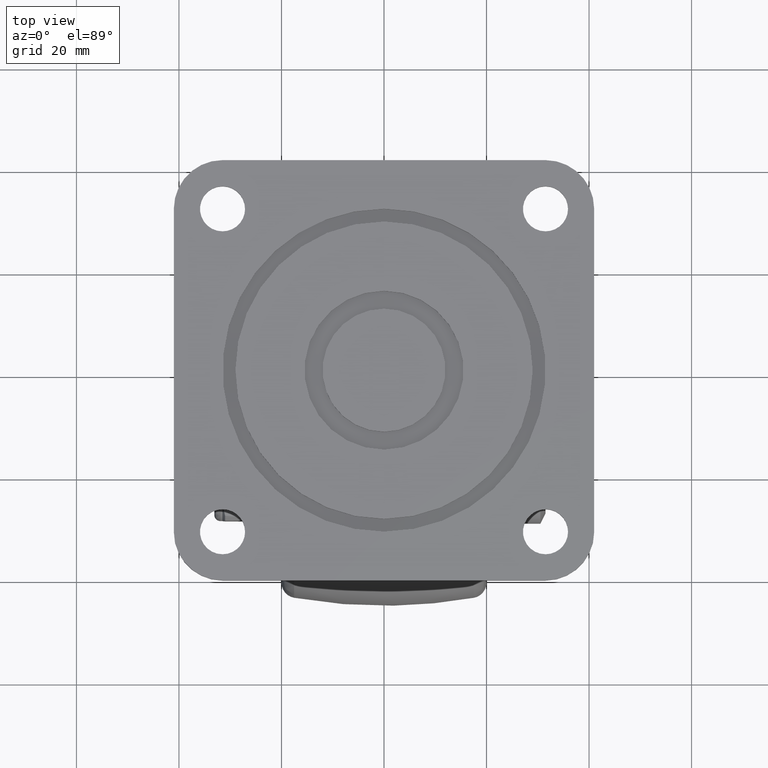
[diagram: clean part render]
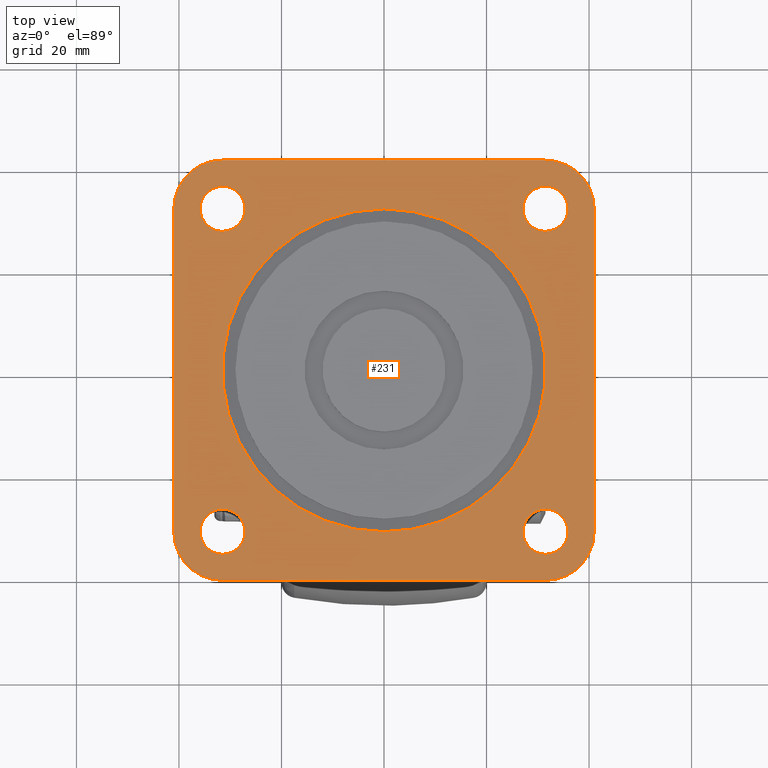
[diagram: same view with one face highlighted and labeled with its STEP entity id]
A machine part, top view. The second image highlights one B-rep face of the part: STEP entity #231.
In plain terms, the highlighted planar face has unit normal (0, 0, 1).
Its self-contained STEP definition (entity closure, byte-faithful):
#231=ADVANCED_FACE('',(#1157,#1158,#1159,#1160,#1161,#1162),#1156,.T.);
#1156=PLANE('',#2820);
#1157=FACE_OUTER_BOUND('',#2821,.T.);
#1158=FACE_BOUND('',#2822,.T.);
#1159=FACE_BOUND('',#2823,.T.);
#1160=FACE_BOUND('',#2824,.T.);
#1161=FACE_BOUND('',#2825,.T.);
#1162=FACE_BOUND('',#2826,.T.);
#2817=CARTESIAN_POINT('',(-4.92000000000E+01,0.00000000000E+00,-4.92000000000E+01));
#2818=DIRECTION('',(0.00000000000E+00,1.00000000000E+00,0.00000000000E+00));
#2819=DIRECTION('',(0.00000000000E+00,0.00000000000E+00,1.00000000000E+00));
#2820=AXIS2_PLACEMENT_3D('',#2817,#2818,#2819);
#2821=EDGE_LOOP('',(#4289,#4290,#4291,#4292,#4293,#4294,#4295,#4296));
#2822=EDGE_LOOP('',(#4297,#4298,#4299));
#2823=EDGE_LOOP('',(#4300,#4301,#4302));
#2824=EDGE_LOOP('',(#4303,#4304,#4305));
#2825=EDGE_LOOP('',(#4306,#4307,#4308));
#2826=EDGE_LOOP('',(#4309,#4310));
#4289=ORIENTED_EDGE('',*,*,#4922,.T.);
#4290=ORIENTED_EDGE('',*,*,#4923,.T.);
#4291=ORIENTED_EDGE('',*,*,#4924,.T.);
#4292=ORIENTED_EDGE('',*,*,#4925,.T.);
#4293=ORIENTED_EDGE('',*,*,#4926,.T.);
#4294=ORIENTED_EDGE('',*,*,#4927,.T.);
#4295=ORIENTED_EDGE('',*,*,#4928,.T.);
#4296=ORIENTED_EDGE('',*,*,#4929,.T.);
#4297=ORIENTED_EDGE('',*,*,#4930,.F.);
#4298=ORIENTED_EDGE('',*,*,#4931,.F.);
#4299=ORIENTED_EDGE('',*,*,#4932,.F.);
#4300=ORIENTED_EDGE('',*,*,#4933,.F.);
#4301=ORIENTED_EDGE('',*,*,#4934,.F.);
#4302=ORIENTED_EDGE('',*,*,#4935,.F.);
#4303=ORIENTED_EDGE('',*,*,#4936,.F.);
#4304=ORIENTED_EDGE('',*,*,#4937,.F.);
#4305=ORIENTED_EDGE('',*,*,#4938,.F.);
#4306=ORIENTED_EDGE('',*,*,#4939,.F.);
#4307=ORIENTED_EDGE('',*,*,#4940,.F.);
#4308=ORIENTED_EDGE('',*,*,#4941,.F.);
#4309=ORIENTED_EDGE('',*,*,#4942,.T.);
#4310=ORIENTED_EDGE('',*,*,#4943,.T.);
#4922=EDGE_CURVE('',#6444,#6445,#6446,.T.);
#4923=EDGE_CURVE('',#6445,#6452,#6453,.T.);
#4924=EDGE_CURVE('',#6452,#6459,#6460,.T.);
#4925=EDGE_CURVE('',#6459,#6466,#6467,.T.);
#4926=EDGE_CURVE('',#6466,#6473,#6474,.T.);
#4927=EDGE_CURVE('',#6473,#6480,#6481,.T.);
#4928=EDGE_CURVE('',#6480,#6487,#6488,.T.);
#4929=EDGE_CURVE('',#6487,#6444,#6494,.T.);
#4930=EDGE_CURVE('',#6500,#6501,#6502,.T.);
#4931=EDGE_CURVE('',#6508,#6500,#6509,.T.);
#4932=EDGE_CURVE('',#6501,#6508,#6515,.T.);
#4933=EDGE_CURVE('',#6521,#6522,#6523,.T.);
#4934=EDGE_CURVE('',#6529,#6521,#6530,.T.);
#4935=EDGE_CURVE('',#6522,#6529,#6536,.T.);
#4936=EDGE_CURVE('',#6542,#6543,#6544,.T.);
#4937=EDGE_CURVE('',#6550,#6542,#6551,.T.);
#4938=EDGE_CURVE('',#6543,#6550,#6557,.T.);
#4939=EDGE_CURVE('',#6563,#6564,#6565,.T.);
#4940=EDGE_CURVE('',#6571,#6563,#6572,.T.);
#4941=EDGE_CURVE('',#6564,#6571,#6578,.T.);
#4942=EDGE_CURVE('',#6584,#6585,#6586,.T.);
#4943=EDGE_CURVE('',#6585,#6584,#6592,.T.);
#6444=VERTEX_POINT('',#9018);
#6445=VERTEX_POINT('',#9019);
#6446=CIRCLE('',#9023,9.50000000000E+00);
#6452=VERTEX_POINT('',#9024);
#6453=LINE('',#9025,#9026);
#6459=VERTEX_POINT('',#9028);
#6460=CIRCLE('',#9032,9.50000000000E+00);
#6466=VERTEX_POINT('',#9033);
#6467=LINE('',#9034,#9035);
#6473=VERTEX_POINT('',#9037);
#6474=CIRCLE('',#9041,9.50000000000E+00);
#6480=VERTEX_POINT('',#9042);
#6481=LINE('',#9043,#9044);
#6487=VERTEX_POINT('',#9046);
#6488=CIRCLE('',#9050,9.50000000000E+00);
#6494=LINE('',#9051,#9052);
#6500=VERTEX_POINT('',#9054);
#6501=VERTEX_POINT('',#9055);
#6502=CIRCLE('',#9059,4.40000000000E+00);
#6508=VERTEX_POINT('',#9060);
#6509=CIRCLE('',#9064,4.40000000000E+00);
#6515=CIRCLE('',#9068,4.40000000000E+00);
#6521=VERTEX_POINT('',#9069);
#6522=VERTEX_POINT('',#9070);
#6523=CIRCLE('',#9074,4.40000000000E+00);
#6529=VERTEX_POINT('',#9075);
#6530=CIRCLE('',#9079,4.40000000000E+00);
#6536=CIRCLE('',#9083,4.40000000000E+00);
#6542=VERTEX_POINT('',#9084);
#6543=VERTEX_POINT('',#9085);
#6544=CIRCLE('',#9089,4.40000000000E+00);
#6550=VERTEX_POINT('',#9090);
#6551=CIRCLE('',#9094,4.40000000000E+00);
#6557=CIRCLE('',#9098,4.40000000000E+00);
#6563=VERTEX_POINT('',#9099);
#6564=VERTEX_POINT('',#9100);
#6565=CIRCLE('',#9104,4.40000000000E+00);
#6571=VERTEX_POINT('',#9105);
#6572=CIRCLE('',#9109,4.40000000000E+00);
#6578=CIRCLE('',#9113,4.40000000000E+00);
#6584=VERTEX_POINT('',#9114);
#6585=VERTEX_POINT('',#9115);
#6586=CIRCLE('',#9119,3.15000000000E+01);
#6592=CIRCLE('',#9123,3.15000000000E+01);
#9018=CARTESIAN_POINT('',(-3.15000000000E+01,0.00000000000E+00,-4.10000000000E+01));
#9019=CARTESIAN_POINT('',(-4.10000000000E+01,0.00000000000E+00,-3.15000000000E+01));
#9020=CARTESIAN_POINT('',(-3.15000000000E+01,0.00000000000E+00,-3.15000000000E+01));
#9021=DIRECTION('',(-0.00000000000E+00,1.00000000000E+00,0.00000000000E+00));
#9022=DIRECTION('',(-1.00000000000E+00,-0.00000000000E+00,-0.00000000000E+00));
#9023=AXIS2_PLACEMENT_3D('',#9020,#9021,#9022);
#9024=CARTESIAN_POINT('',(-4.10000000000E+01,0.00000000000E+00,3.15000000000E+01));
#9025=CARTESIAN_POINT('',(-4.10000000000E+01,0.00000000000E+00,-3.15000000000E+01));
#9026=VECTOR('',#9027,6.30000000000E+01);
#9027=DIRECTION('',(0.00000000000E+00,0.00000000000E+00,1.00000000000E+00));
#9028=CARTESIAN_POINT('',(-3.15000000000E+01,0.00000000000E+00,4.10000000000E+01));
#9029=CARTESIAN_POINT('',(-3.15000000000E+01,0.00000000000E+00,3.15000000000E+01));
#9030=DIRECTION('',(-0.00000000000E+00,1.00000000000E+00,0.00000000000E+00));
#9031=DIRECTION('',(-1.00000000000E+00,-0.00000000000E+00,-0.00000000000E+00));
#9032=AXIS2_PLACEMENT_3D('',#9029,#9030,#9031);
#9033=CARTESIAN_POINT('',(3.15000000000E+01,0.00000000000E+00,4.10000000000E+01));
#9034=CARTESIAN_POINT('',(-3.15000000000E+01,0.00000000000E+00,4.10000000000E+01));
#9035=VECTOR('',#9036,6.30000000000E+01);
#9036=DIRECTION('',(1.00000000000E+00,0.00000000000E+00,0.00000000000E+00));
#9037=CARTESIAN_POINT('',(4.10000000000E+01,0.00000000000E+00,3.15000000000E+01));
#9038=CARTESIAN_POINT('',(3.15000000000E+01,0.00000000000E+00,3.15000000000E+01));
#9039=DIRECTION('',(-0.00000000000E+00,1.00000000000E+00,0.00000000000E+00));
#9040=DIRECTION('',(-1.00000000000E+00,-0.00000000000E+00,-0.00000000000E+00));
#9041=AXIS2_PLACEMENT_3D('',#9038,#9039,#9040);
#9042=CARTESIAN_POINT('',(4.10000000000E+01,0.00000000000E+00,-3.15000000000E+01));
#9043=CARTESIAN_POINT('',(4.10000000000E+01,0.00000000000E+00,3.15000000000E+01));
#9044=VECTOR('',#9045,6.30000000000E+01);
#9045=DIRECTION('',(0.00000000000E+00,0.00000000000E+00,-1.00000000000E+00));
#9046=CARTESIAN_POINT('',(3.15000000000E+01,0.00000000000E+00,-4.10000000000E+01));
#9047=CARTESIAN_POINT('',(3.15000000000E+01,0.00000000000E+00,-3.15000000000E+01));
#9048=DIRECTION('',(-0.00000000000E+00,1.00000000000E+00,0.00000000000E+00));
#9049=DIRECTION('',(-1.00000000000E+00,-0.00000000000E+00,-0.00000000000E+00));
#9050=AXIS2_PLACEMENT_3D('',#9047,#9048,#9049);
#9051=CARTESIAN_POINT('',(3.15000000000E+01,0.00000000000E+00,-4.10000000000E+01));
#9052=VECTOR('',#9053,6.30000000000E+01);
#9053=DIRECTION('',(-1.00000000000E+00,0.00000000000E+00,0.00000000000E+00));
#9054=CARTESIAN_POINT('',(-3.15004566353E+01,0.00000000000E+00,-2.71000000237E+01));
#9055=CARTESIAN_POINT('',(-2.71000000000E+01,0.00000000000E+00,-3.15000000000E+01));
#9056=CARTESIAN_POINT('',(-3.15000000000E+01,0.00000000000E+00,-3.15000000000E+01));
#9057=DIRECTION('',(-0.00000000000E+00,1.00000000000E+00,0.00000000000E+00));
#9058=DIRECTION('',(1.00000000000E+00,0.00000000000E+00,1.22460635382E-16));
#9059=AXIS2_PLACEMENT_3D('',#9056,#9057,#9058);
#9060=CARTESIAN_POINT('',(-3.15000000000E+01,0.00000000000E+00,-3.59000000000E+01));
#9061=CARTESIAN_POINT('',(-3.15000000000E+01,0.00000000000E+00,-3.15000000000E+01));
#9062=DIRECTION('',(-0.00000000000E+00,1.00000000000E+00,0.00000000000E+00));
#9063=DIRECTION('',(1.00000000000E+00,0.00000000000E+00,1.22460635382E-16));
#9064=AXIS2_PLACEMENT_3D('',#9061,#9062,#9063);
#9065=CARTESIAN_POINT('',(-3.15000000000E+01,0.00000000000E+00,-3.15000000000E+01));
#9066=DIRECTION('',(-0.00000000000E+00,1.00000000000E+00,0.00000000000E+00));
#9067=DIRECTION('',(1.00000000000E+00,0.00000000000E+00,1.22460635382E-16));
#9068=AXIS2_PLACEMENT_3D('',#9065,#9066,#9067);
#9069=CARTESIAN_POINT('',(3.14995433647E+01,0.00000000000E+00,3.58999999763E+01));
#9070=CARTESIAN_POINT('',(3.59000000000E+01,0.00000000000E+00,3.15000000000E+01));
#9071=CARTESIAN_POINT('',(3.15000000000E+01,0.00000000000E+00,3.15000000000E+01));
#9072=DIRECTION('',(-0.00000000000E+00,1.00000000000E+00,0.00000000000E+00));
#9073=DIRECTION('',(1.00000000000E+00,0.00000000000E+00,1.22460635382E-16));
#9074=AXIS2_PLACEMENT_3D('',#9071,#9072,#9073);
#9075=CARTESIAN_POINT('',(3.15000000000E+01,0.00000000000E+00,2.71000000000E+01));
#9076=CARTESIAN_POINT('',(3.15000000000E+01,0.00000000000E+00,3.15000000000E+01));
#9077=DIRECTION('',(-0.00000000000E+00,1.00000000000E+00,0.00000000000E+00));
#9078=DIRECTION('',(1.00000000000E+00,0.00000000000E+00,1.22460635382E-16));
#9079=AXIS2_PLACEMENT_3D('',#9076,#9077,#9078);
#9080=CARTESIAN_POINT('',(3.15000000000E+01,0.00000000000E+00,3.15000000000E+01));
#9081=DIRECTION('',(-0.00000000000E+00,1.00000000000E+00,0.00000000000E+00));
#9082=DIRECTION('',(1.00000000000E+00,0.00000000000E+00,1.22460635382E-16));
#9083=AXIS2_PLACEMENT_3D('',#9080,#9081,#9082);
#9084=CARTESIAN_POINT('',(3.14995433647E+01,0.00000000000E+00,-2.71000000237E+01));
#9085=CARTESIAN_POINT('',(3.59000000000E+01,0.00000000000E+00,-3.15000000000E+01));
#9086=CARTESIAN_POINT('',(3.15000000000E+01,0.00000000000E+00,-3.15000000000E+01));
#9087=DIRECTION('',(-0.00000000000E+00,1.00000000000E+00,0.00000000000E+00));
#9088=DIRECTION('',(1.00000000000E+00,0.00000000000E+00,1.22460635382E-16));
#9089=AXIS2_PLACEMENT_3D('',#9086,#9087,#9088);
#9090=CARTESIAN_POINT('',(3.15000000000E+01,0.00000000000E+00,-3.59000000000E+01));
#9091=CARTESIAN_POINT('',(3.15000000000E+01,0.00000000000E+00,-3.15000000000E+01));
#9092=DIRECTION('',(-0.00000000000E+00,1.00000000000E+00,0.00000000000E+00));
#9093=DIRECTION('',(1.00000000000E+00,0.00000000000E+00,1.22460635382E-16));
#9094=AXIS2_PLACEMENT_3D('',#9091,#9092,#9093);
#9095=CARTESIAN_POINT('',(3.15000000000E+01,0.00000000000E+00,-3.15000000000E+01));
#9096=DIRECTION('',(-0.00000000000E+00,1.00000000000E+00,0.00000000000E+00));
#9097=DIRECTION('',(1.00000000000E+00,0.00000000000E+00,1.22460635382E-16));
#9098=AXIS2_PLACEMENT_3D('',#9095,#9096,#9097);
#9099=CARTESIAN_POINT('',(-3.15004566353E+01,0.00000000000E+00,3.58999999763E+01));
#9100=CARTESIAN_POINT('',(-2.71000000000E+01,0.00000000000E+00,3.15000000000E+01));
#9101=CARTESIAN_POINT('',(-3.15000000000E+01,0.00000000000E+00,3.15000000000E+01));
#9102=DIRECTION('',(-0.00000000000E+00,1.00000000000E+00,0.00000000000E+00));
#9103=DIRECTION('',(1.00000000000E+00,0.00000000000E+00,1.22460635382E-16));
#9104=AXIS2_PLACEMENT_3D('',#9101,#9102,#9103);
#9105=CARTESIAN_POINT('',(-3.15000000000E+01,0.00000000000E+00,2.71000000000E+01));
#9106=CARTESIAN_POINT('',(-3.15000000000E+01,0.00000000000E+00,3.15000000000E+01));
#9107=DIRECTION('',(-0.00000000000E+00,1.00000000000E+00,0.00000000000E+00));
#9108=DIRECTION('',(1.00000000000E+00,0.00000000000E+00,1.22460635382E-16));
#9109=AXIS2_PLACEMENT_3D('',#9106,#9107,#9108);
#9110=CARTESIAN_POINT('',(-3.15000000000E+01,0.00000000000E+00,3.15000000000E+01));
#9111=DIRECTION('',(-0.00000000000E+00,1.00000000000E+00,0.00000000000E+00));
#9112=DIRECTION('',(1.00000000000E+00,0.00000000000E+00,1.22460635382E-16));
#9113=AXIS2_PLACEMENT_3D('',#9110,#9111,#9112);
#9114=CARTESIAN_POINT('',(0.00000000000E+00,0.00000000000E+00,3.15000000000E+01));
#9115=CARTESIAN_POINT('',(5.92118946467E-15,0.00000000000E+00,-3.15000000000E+01));
#9116=CARTESIAN_POINT('',(0.00000000000E+00,0.00000000000E+00,0.00000000000E+00));
#9117=DIRECTION('',(-0.00000000000E+00,-1.00000000000E+00,0.00000000000E+00));
#9118=DIRECTION('',(-1.22460635382E-16,0.00000000000E+00,1.00000000000E+00));
#9119=AXIS2_PLACEMENT_3D('',#9116,#9117,#9118);
#9120=CARTESIAN_POINT('',(0.00000000000E+00,0.00000000000E+00,0.00000000000E+00));
#9121=DIRECTION('',(-0.00000000000E+00,-1.00000000000E+00,0.00000000000E+00));
#9122=DIRECTION('',(-1.22460635382E-16,0.00000000000E+00,1.00000000000E+00));
#9123=AXIS2_PLACEMENT_3D('',#9120,#9121,#9122);